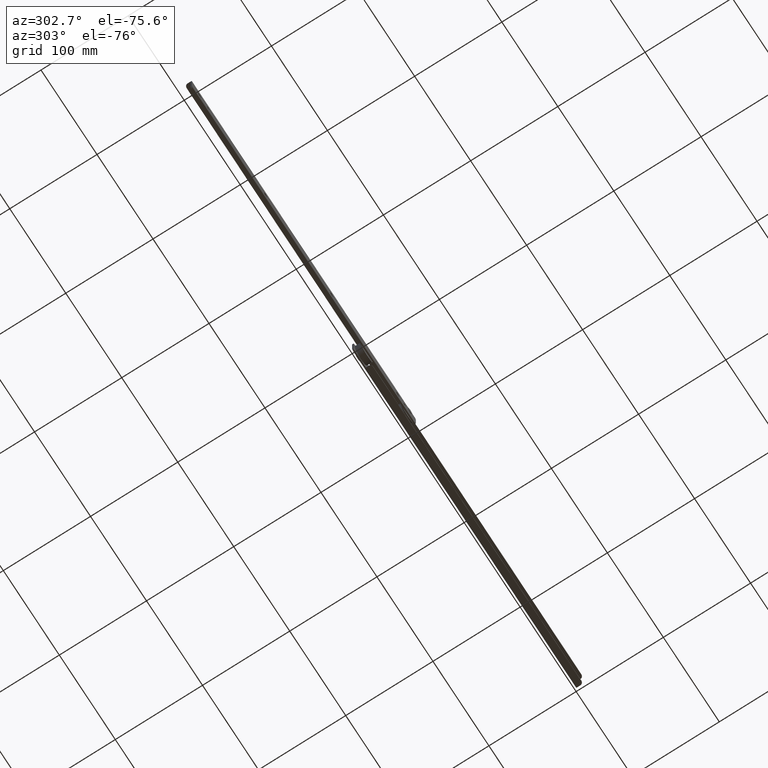
[diagram: clean part render]
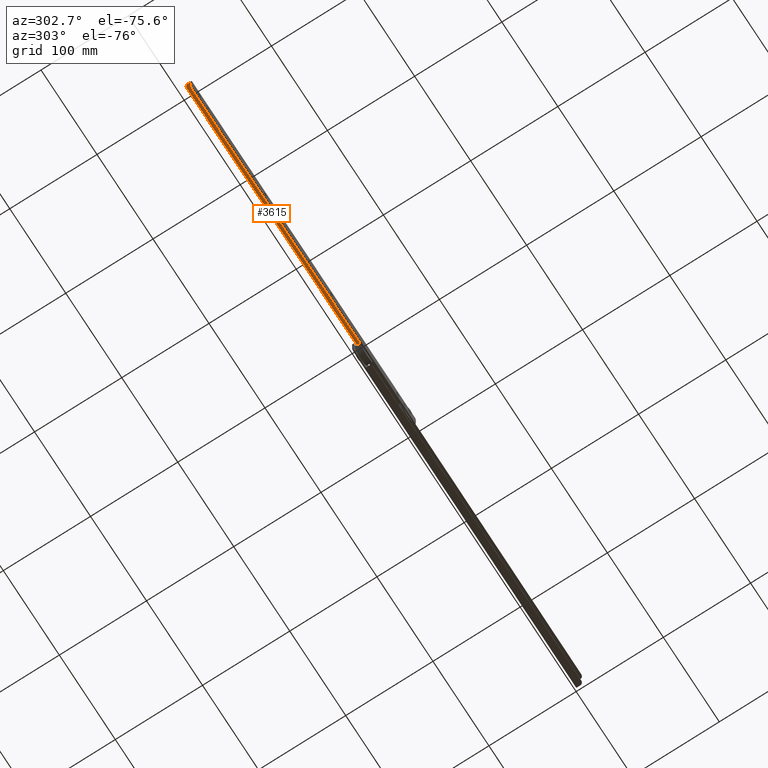
[diagram: same view with one face highlighted and labeled with its STEP entity id]
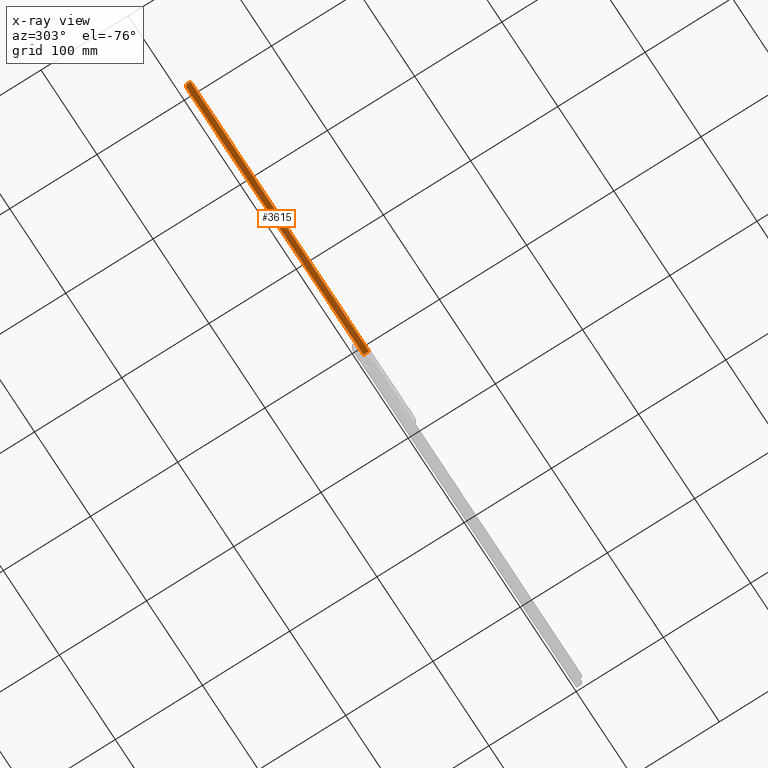
[diagram: x-ray of the same camera — body ghosted, the highlighted face saturated]
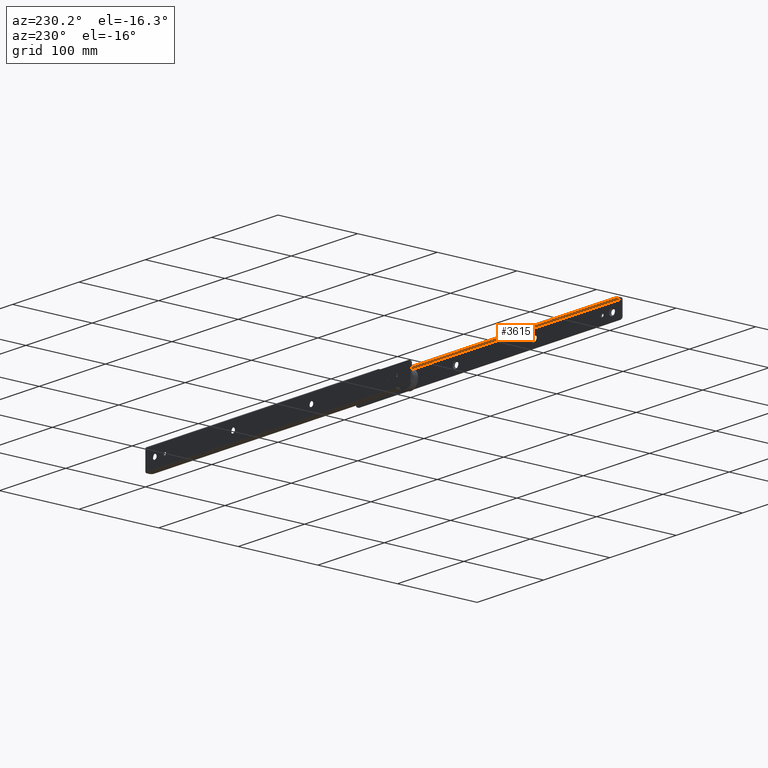
[diagram: same view with one face highlighted and labeled with its STEP entity id]
A machine part, auxiliary view. The second image highlights one B-rep face of the part: STEP entity #3615.
The next image is the same camera in x-ray: the body ghosted, the highlighted face saturated — about 0% of this face is hidden behind the body in this view.
A second angle (auxiliary view) of the same face is appended — the face is thin or edge-on in the first view.
In plain terms, the highlighted face is a freeform B-spline surface patch.
Its self-contained STEP definition (entity closure, byte-faithful):
#2918=CARTESIAN_POINT('',(14.0,-10.0,-1.599999999999795));
#2919=VERTEX_POINT('',#2918);
#2980=CARTESIAN_POINT('',(14.0,-4.0,-1.599999999999795));
#2981=VERTEX_POINT('',#2980);
#2989=CARTESIAN_POINT('',(14.0,-10.0,-1.599999999999795));
#2990=CARTESIAN_POINT('',(14.0,-4.0,-1.599999999999795));
#2991=QUASI_UNIFORM_CURVE('',1,(#2989,#2990),.UNSPECIFIED.,.F.,.U.);
#2992=EDGE_CURVE('',#2919,#2981,#2991,.T.);
#3127=CARTESIAN_POINT('',(-302.0,-4.0,-1.599999999999795));
#3128=VERTEX_POINT('',#3127);
#3134=CARTESIAN_POINT('',(-305.0,-7.0,-1.599999999999795));
#3135=VERTEX_POINT('',#3134);
#3136=CARTESIAN_POINT('',(-305.0,-7.0,-1.599999999999795));
#3137=CARTESIAN_POINT('',(-305.0,-4.000000000000000,-1.599999999999795));
#3138=CARTESIAN_POINT('',(-302.0,-4.0,-1.599999999999795));
#3146=(BOUNDED_CURVE()B_SPLINE_CURVE(2,(#3136,#3137,#3138),.UNSPECIFIED.,.F.,.U.)CURVE()GEOMETRIC_REPRESENTATION_ITEM()QUASI_UNIFORM_CURVE()RATIONAL_B_SPLINE_CURVE((1.0,0.707106781186548,1.0))REPRESENTATION_ITEM(''));
#3147=EDGE_CURVE('',#3135,#3128,#3146,.T.);
#3467=CARTESIAN_POINT('',(14.0,-10.400000000000000,-1.599999999999795));
#3468=VERTEX_POINT('',#3467);
#3474=CARTESIAN_POINT('',(14.0,-10.400000000000000,-1.599999999999795));
#3475=CARTESIAN_POINT('',(14.0,-10.0,-1.599999999999795));
#3476=QUASI_UNIFORM_CURVE('',1,(#3474,#3475),.UNSPECIFIED.,.F.,.U.);
#3477=EDGE_CURVE('',#3468,#2919,#3476,.T.);
#3530=CARTESIAN_POINT('',(-305.0,-10.400000000000000,-1.599999999999795));
#3531=VERTEX_POINT('',#3530);
#3566=CARTESIAN_POINT('',(-305.0,-7.0,-1.599999999999795));
#3567=CARTESIAN_POINT('',(-305.0,-10.400000000000000,-1.599999999999795));
#3568=QUASI_UNIFORM_CURVE('',1,(#3566,#3567),.UNSPECIFIED.,.F.,.U.);
#3569=EDGE_CURVE('',#3135,#3531,#3568,.T.);
#3594=CARTESIAN_POINT('',(-320.934049381716080,-10.719679627123840,-1.599999999999795));
#3595=CARTESIAN_POINT('',(-320.934049381716080,-3.680319857892037,-1.599999999999795));
#3596=CARTESIAN_POINT('',(29.934057937962859,-10.719679627123840,-1.599999999999795));
#3597=CARTESIAN_POINT('',(29.934057937962859,-3.680319857892037,-1.599999999999795));
#3598=B_SPLINE_SURFACE_WITH_KNOTS('',1,1,((#3594,#3596),(#3595,#3597)),.UNSPECIFIED.,.F.,.F.,.U.,(2,2),(2,2),(0.0,7.039359769231798),(0.0,350.868107319678980),.UNSPECIFIED.);
#3599=ORIENTED_EDGE('',*,*,#3569,.F.);
#3600=ORIENTED_EDGE('',*,*,#3147,.T.);
#3601=CARTESIAN_POINT('',(14.0,-4.0,-1.599999999999795));
#3602=CARTESIAN_POINT('',(-302.0,-4.0,-1.599999999999795));
#3603=QUASI_UNIFORM_CURVE('',1,(#3601,#3602),.UNSPECIFIED.,.F.,.U.);
#3604=EDGE_CURVE('',#2981,#3128,#3603,.T.);
#3605=ORIENTED_EDGE('',*,*,#3604,.F.);
#3606=ORIENTED_EDGE('',*,*,#2992,.F.);
#3607=ORIENTED_EDGE('',*,*,#3477,.F.);
#3608=CARTESIAN_POINT('',(14.0,-10.400000000000000,-1.599999999999795));
#3609=CARTESIAN_POINT('',(-305.0,-10.400000000000000,-1.599999999999795));
#3610=QUASI_UNIFORM_CURVE('',1,(#3608,#3609),.UNSPECIFIED.,.F.,.U.);
#3611=EDGE_CURVE('',#3468,#3531,#3610,.T.);
#3612=ORIENTED_EDGE('',*,*,#3611,.T.);
#3613=EDGE_LOOP('',(#3599,#3600,#3605,#3606,#3607,#3612));
#3614=FACE_OUTER_BOUND('',#3613,.T.);
#3615=ADVANCED_FACE('',(#3614),#3598,.T.);